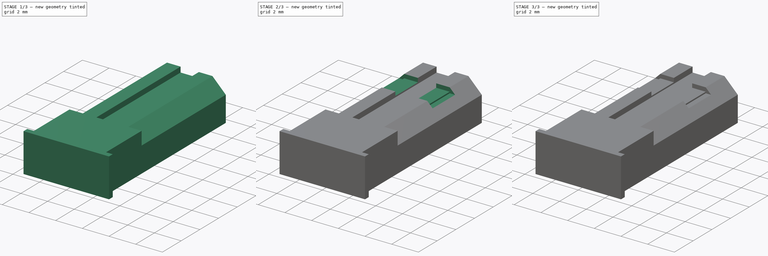
[diagram: build sequence overview — one tinted view per stage of 3, left to right]
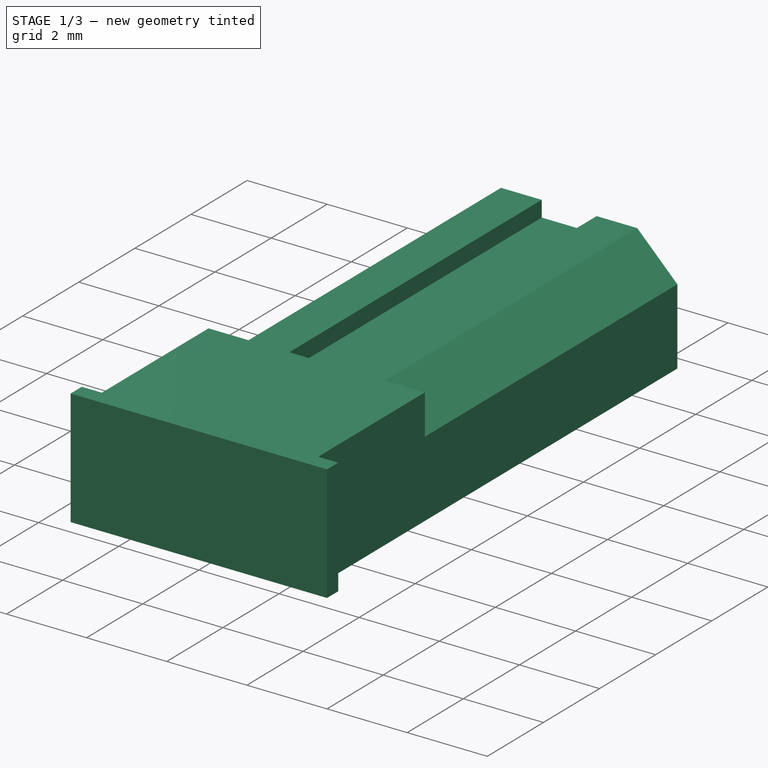
[diagram: stage 1 of 3 — iso view after this stage's code; geometry added in this stage tinted green]
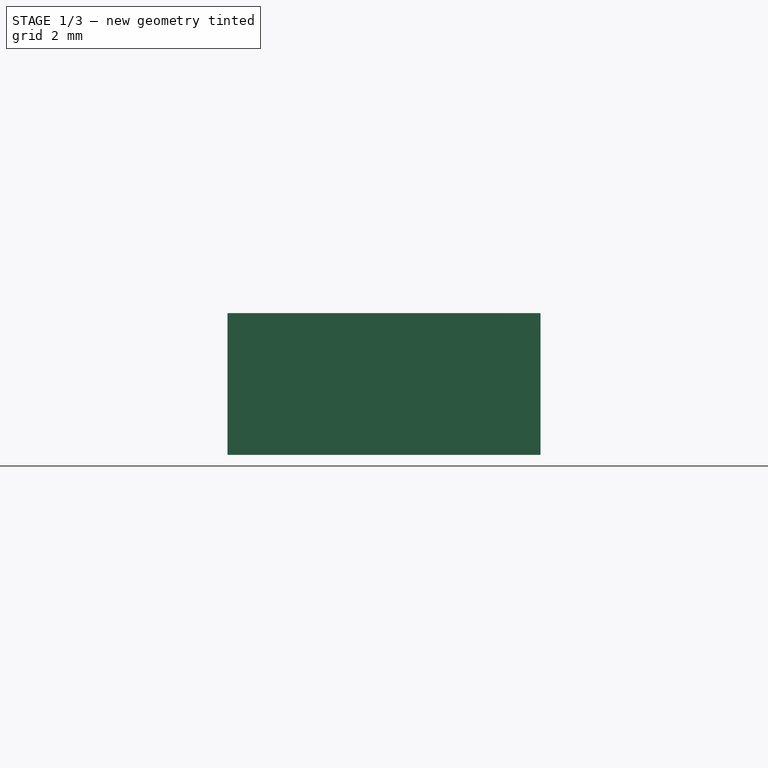
[diagram: stage 1 of 3 — front view after this stage's code; geometry added in this stage tinted green]
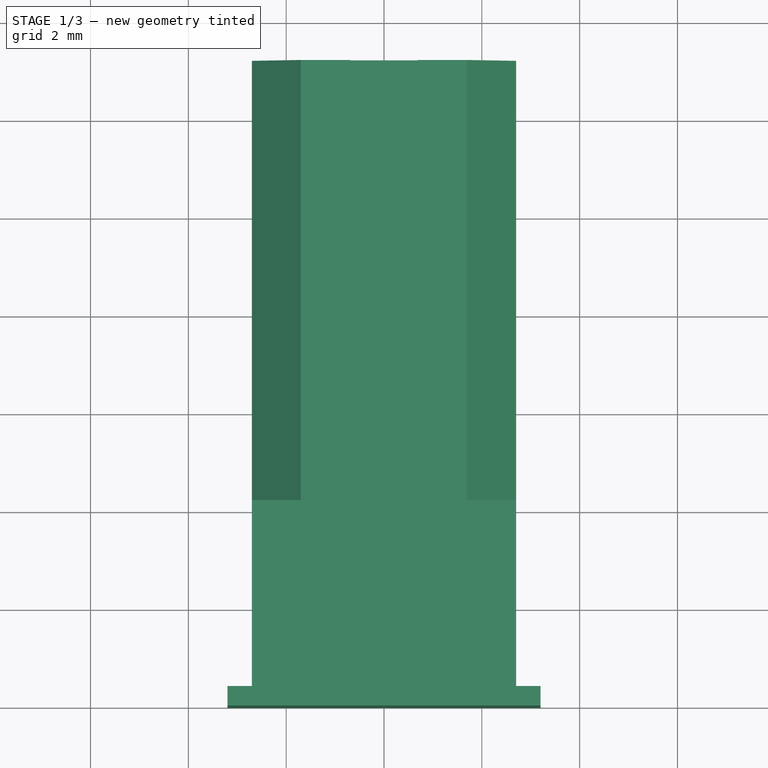
[diagram: stage 1 of 3 — top view after this stage's code; geometry added in this stage tinted green]
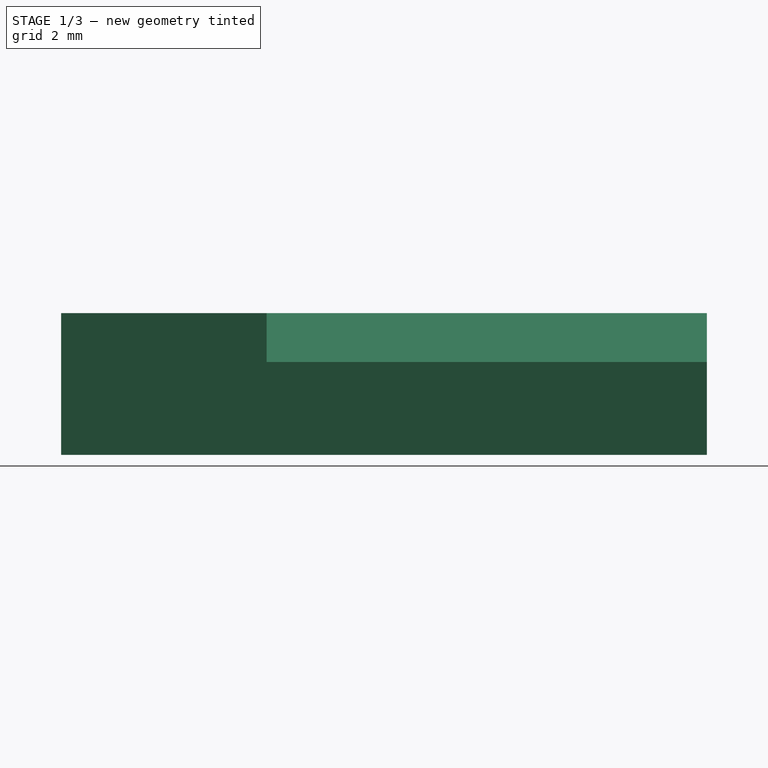
[diagram: stage 1 of 3 — right view after this stage's code; geometry added in this stage tinted green]
FCSTD DOCUMENT  (FreeCAD 0.14R3702 (Git))
Label: hotend-thermistor-connector
License: CC-BY 3.0
LicenseURL: http://creativecommons.org/licenses/by/3.0/
objects: Sketcher::SketchObject×5, PartDesign::Pocket×3, PartDesign::Pad×2, Part::Chamfer×1, Part::Feature×1
note: 17 computed .brp shape members not serialized (recipe doc carries the construction recipe); baked Part::Feature solids carry a one-line shape summary decoded from their .brp

FEATURE [Sketcher::SketchObject] Sketch  label="main-body-sketch"
  sketch-geometry (8):
    g0: LineSegment StartX=3.2 StartY=0 StartZ=0 EndX=-3.2 EndY=0 EndZ=0
    g1: LineSegment StartX=-3.2 StartY=0 StartZ=0 EndX=-3.2 EndY=0.4 EndZ=0
    g2: LineSegment StartX=-3.2 StartY=0.4 StartZ=0 EndX=-2.7 EndY=0.4 EndZ=0
    g3: LineSegment StartX=-2.7 StartY=0.4 StartZ=0 EndX=-2.7 EndY=13.2 EndZ=0
    g4: LineSegment StartX=-2.7 StartY=13.2 StartZ=0 EndX=2.7 EndY=13.2 EndZ=0
    g5: LineSegment StartX=2.7 StartY=13.2 StartZ=0 EndX=2.7 EndY=0.4 EndZ=0
    g6: LineSegment StartX=2.7 StartY=0.4 StartZ=0 EndX=3.2 EndY=0.4 EndZ=0
    g7: LineSegment StartX=3.2 StartY=0.4 StartZ=0 EndX=3.2 EndY=0 EndZ=0
  constraints (23):
    c: Horizontal(g0)
    c: Coincident(g0,g1)
    c: Vertical(g1)
    c: Coincident(g1,g2)
    c: Horizontal(g2)
    c: Coincident(g2,g3)
    c: Vertical(g3)
    c: Coincident(g3,g4)
    c: Horizontal(g4)
    c: Coincident(g4,g5)
    c: Vertical(g5)
    c: Coincident(g5,g6)
    c: Coincident(g6,g7)
    c: Coincident(g7,g0)
    c: Vertical(g7)
    c: PointOnObject(g0,g-1)
    c: Symmetric(g0,g0,g-2)
    c: Horizontal(g6)
    c: Symmetric(g2,g5,g-2)
    c: DistanceX(g0) = -6.4
    c: DistanceY(g1) = 0.4
    c: DistanceY(g4) = 13.2
    c: DistanceX(g2) = 0.5
FEATURE [PartDesign::Pad] Pad  label="main-body"
  Length = 2.9
  Length2 = 100
  Midplane = true
  Sketch = -> Sketch
  Type = 0
FEATURE [Sketcher::SketchObject] Sketch001  label="cutout-1-sketch"
  ExternalGeometry = -> [Pad]
  Placement = pos=(0,13.2,0) rot=(0,0.707107,0.707107;3.14159rad)
  Support = -> Pad [Face5]
  sketch-geometry (11):
    g0: LineSegment StartX=-2.7 StartY=0.45 StartZ=0 EndX=-1.7 EndY=1.45 EndZ=0
    g1: LineSegment StartX=-1.7 StartY=1.45 StartZ=0 EndX=-0.685 EndY=1.45 EndZ=0
    g2: LineSegment StartX=-0.685 StartY=1.45 StartZ=0 EndX=-0.685 EndY=1.05 EndZ=0
    g3: LineSegment StartX=-0.685 StartY=1.05 StartZ=0 EndX=0.685 EndY=1.05 EndZ=0
    g4: LineSegment StartX=0.685 StartY=1.05 StartZ=0 EndX=0.685 EndY=1.45 EndZ=0
    g5: LineSegment StartX=0.685 StartY=1.45 StartZ=0 EndX=1.7 EndY=1.45 EndZ=0
    g6: LineSegment StartX=1.7 StartY=1.45 StartZ=0 EndX=2.7 EndY=0.45 EndZ=0
    g7: LineSegment StartX=2.7 StartY=0.45 StartZ=0 EndX=2.7 EndY=1.95 EndZ=0
    g8: LineSegment StartX=2.7 StartY=1.95 StartZ=0 EndX=-2.7 EndY=1.95 EndZ=0
    g9: LineSegment StartX=-2.7 StartY=1.95 StartZ=0 EndX=-2.7 EndY=0.45 EndZ=0
    g10: LineSegment [constr] StartX=-2.7 StartY=0.45 StartZ=0 EndX=-1.7 EndY=0.45 EndZ=0
  constraints (31):
    c: Coincident(g0,g1)
    c: Horizontal(g1)
    c: Coincident(g1,g2)
    c: Vertical(g2)
    c: Coincident(g2,g3)
    c: Horizontal(g3)
    c: Coincident(g3,g4)
    c: Vertical(g4)
    c: Coincident(g4,g5)
    c: Horizontal(g5)
    c: Coincident(g5,g6)
    c: Coincident(g6,g7)
    c: Vertical(g7)
    c: Coincident(g7,g8)
    c: Horizontal(g8)
    c: Coincident(g8,g9)
    c: Coincident(g9,g0)
    c: Vertical(g9)
    c: PointOnObject(g0,g-3)
    c: Symmetric(g0,g6,g-2)
    c: PointOnObject(g0,g-5)
    c: Symmetric(g0,g5,g-2)
    c: Horizontal(g10)
    c: Coincident(g10,g0)
    c: DistanceX(g10) = 1
    c: Angle(g10,g0) = 0.785398
    c: DistanceY(g-5,g8) = 0.5
    c: Symmetric(g3,g2,g-2)
    c: DistanceX(g3) = 1.37
    c: DistanceY(g2) = -0.4
    c: DistanceX(g0,g-5) = -1
FEATURE [PartDesign::Pocket] Pocket  label="cutout-1"
  Length = 9
  Sketch = -> Sketch001
  Type = 0
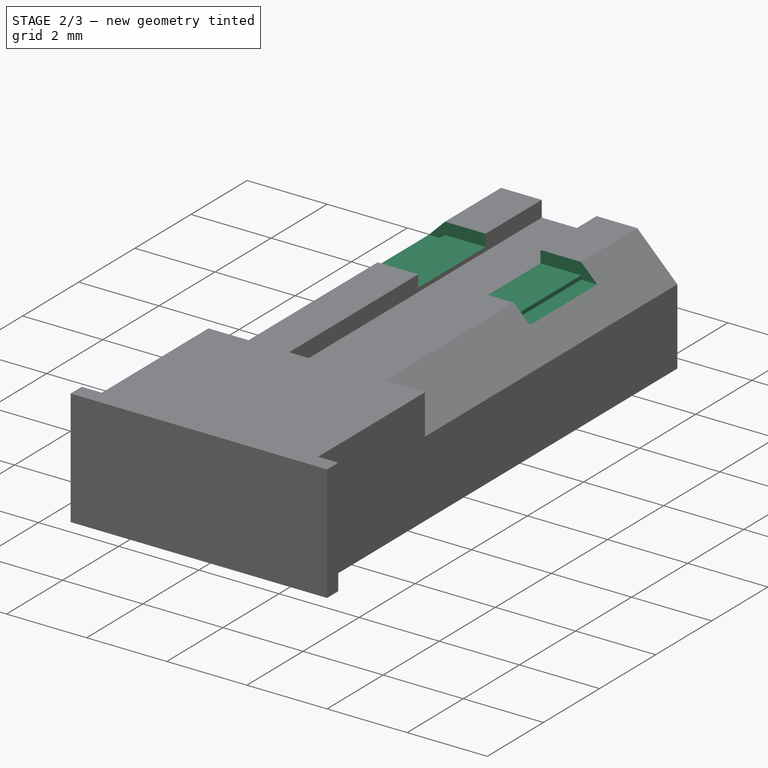
[diagram: stage 2 of 3 — iso view after this stage's code; geometry added in this stage tinted green]
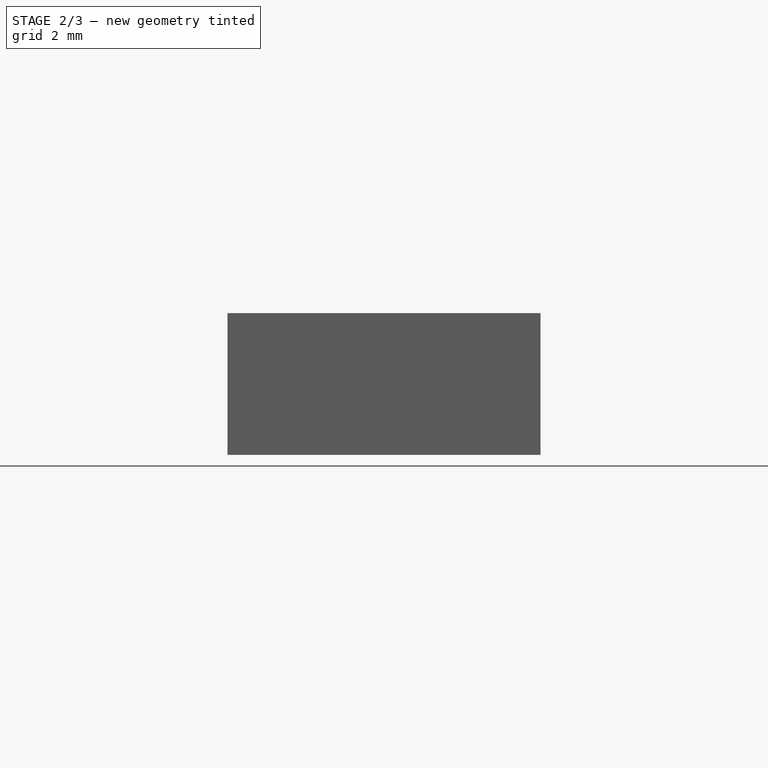
[diagram: stage 2 of 3 — front view after this stage's code; geometry added in this stage tinted green]
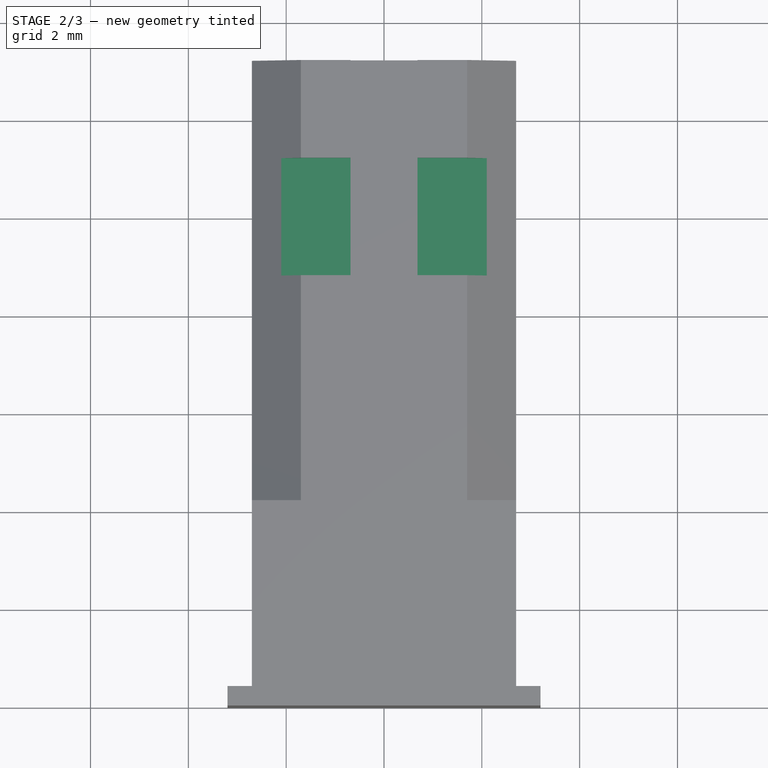
[diagram: stage 2 of 3 — top view after this stage's code; geometry added in this stage tinted green]
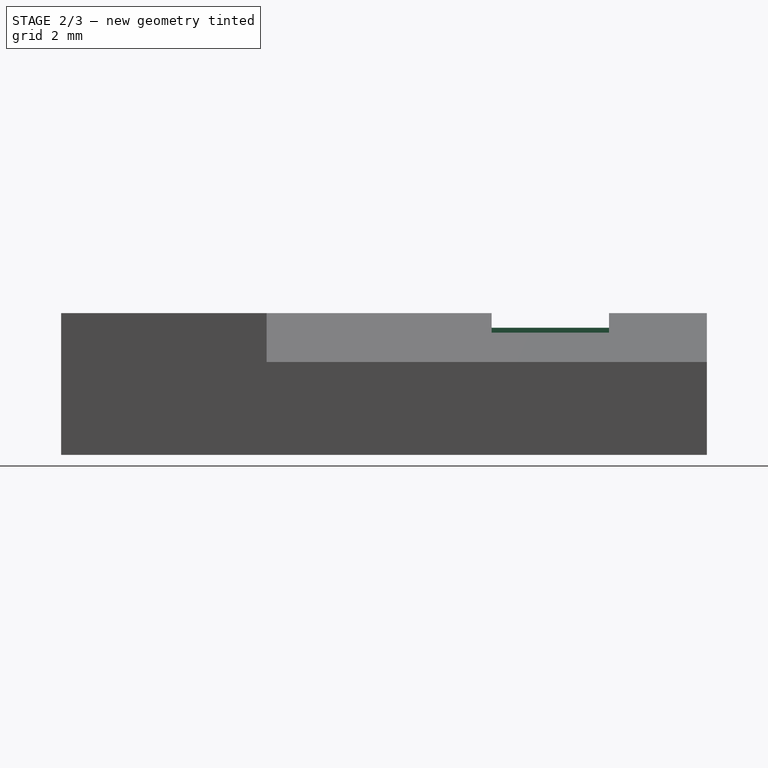
[diagram: stage 2 of 3 — right view after this stage's code; geometry added in this stage tinted green]
FEATURE [Sketcher::SketchObject] Sketch002  label="cutout-2-sketch"
  ExternalGeometry = -> [Pocket]
  Placement = pos=(0,0,1.45) rot=(0,0,1;0rad)
  Support = -> Pocket [Face18]
  sketch-geometry (4):
    g0: LineSegment StartX=-2.7 StartY=11.2 StartZ=0 EndX=2.7 EndY=11.2 EndZ=0
    g1: LineSegment StartX=2.7 StartY=11.2 StartZ=0 EndX=2.7 EndY=8.8 EndZ=0
    g2: LineSegment StartX=2.7 StartY=8.8 StartZ=0 EndX=-2.7 EndY=8.8 EndZ=0
    g3: LineSegment StartX=-2.7 StartY=8.8 StartZ=0 EndX=-2.7 EndY=11.2 EndZ=0
  constraints (12):
    c: Coincident(g0,g1)
    c: Coincident(g1,g2)
    c: Coincident(g2,g3)
    c: Coincident(g3,g0)
    c: Horizontal(g0)
    c: Horizontal(g2)
    c: Vertical(g1)
    c: Vertical(g3)
    c: PointOnObject(g0,g-3)
    c: Symmetric(g0,g0,g-2)
    c: DistanceY(g0,g-4) = 2
    c: DistanceY(g1) = -2.4
FEATURE [PartDesign::Pocket] Pocket001  label="cutout-2"
  Length = 0.4
  Sketch = -> Sketch002
  Type = 0
FEATURE [Sketcher::SketchObject] Sketch003  label="metal-contacts-sketch"
  ExternalGeometry = -> [Pocket001]
  Placement = pos=(0,0,1.05) rot=(0,0,1;0rad)
  Support = -> Pocket001 [Face26]
  sketch-geometry (8):
    g0: LineSegment StartX=-1.7 StartY=11.2 StartZ=0 EndX=-0.685 EndY=11.2 EndZ=0
    g1: LineSegment StartX=-0.685 StartY=11.2 StartZ=0 EndX=-0.685 EndY=8.8 EndZ=0
    g2: LineSegment StartX=-0.685 StartY=8.8 StartZ=0 EndX=-1.7 EndY=8.8 EndZ=0
    g3: LineSegment StartX=-1.7 StartY=8.8 StartZ=0 EndX=-1.7 EndY=11.2 EndZ=0
    g4: LineSegment StartX=0.685 StartY=11.2 StartZ=0 EndX=1.7 EndY=11.2 EndZ=0
    g5: LineSegment StartX=1.7 StartY=11.2 StartZ=0 EndX=1.7 EndY=8.8 EndZ=0
    g6: LineSegment StartX=1.7 StartY=8.8 StartZ=0 EndX=0.685 EndY=8.8 EndZ=0
    g7: LineSegment StartX=0.685 StartY=8.8 StartZ=0 EndX=0.685 EndY=11.2 EndZ=0
  constraints (21):
    c: Coincident(g0,g1)
    c: Coincident(g1,g2)
    c: Coincident(g2,g3)
    c: Coincident(g3,g0)
    c: Horizontal(g2)
    c: Vertical(g1)
    c: Vertical(g3)
    c: Coincident(g4,g5)
    c: Coincident(g5,g6)
    c: Coincident(g6,g7)
    c: Coincident(g7,g4)
    c: Horizontal(g4)
    c: Horizontal(g6)
    c: Vertical(g5)
    c: Vertical(g7)
    c: Symmetric(g0,g4,g-2)
    c: Symmetric(g0,g4,g-2)
    c: Coincident(g0,g-3)
    c: Coincident(g0,g-3)
    c: Coincident(g2,g-4)
    c: Symmetric(g6,g1,g-2)
FEATURE [PartDesign::Pad] Pad001  label="metal-contacts"
  Length = 0.1
  Length2 = 100
  Sketch = -> Sketch003
  Type = 0
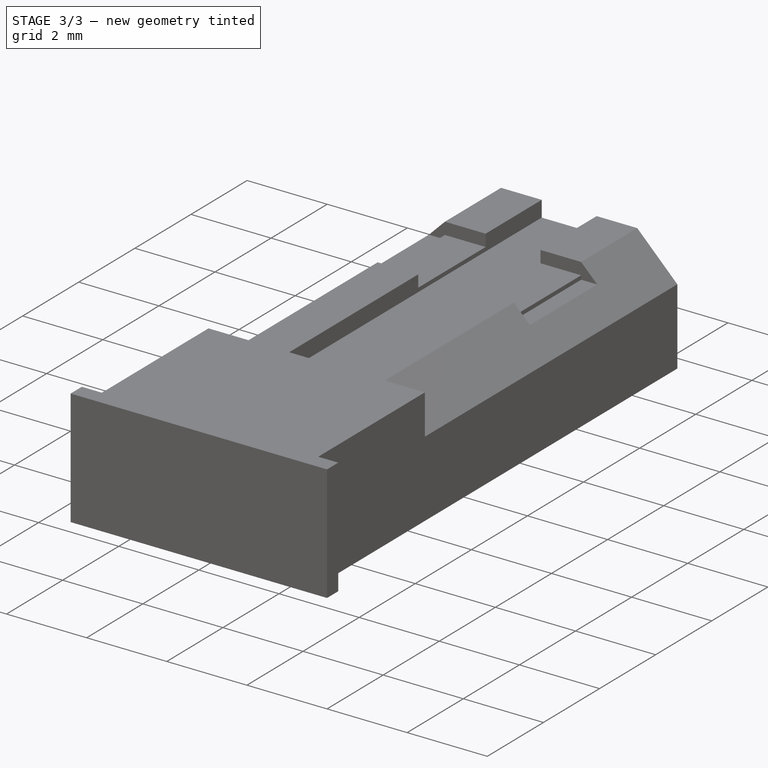
[diagram: stage 3 of 3 — iso view after this stage's code; geometry added in this stage tinted green]
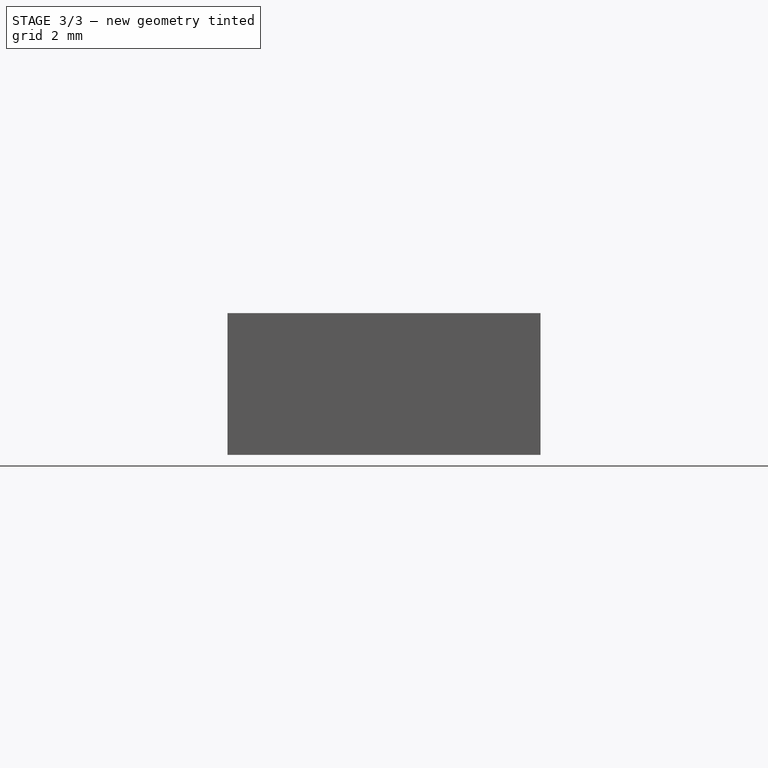
[diagram: stage 3 of 3 — front view after this stage's code; geometry added in this stage tinted green]
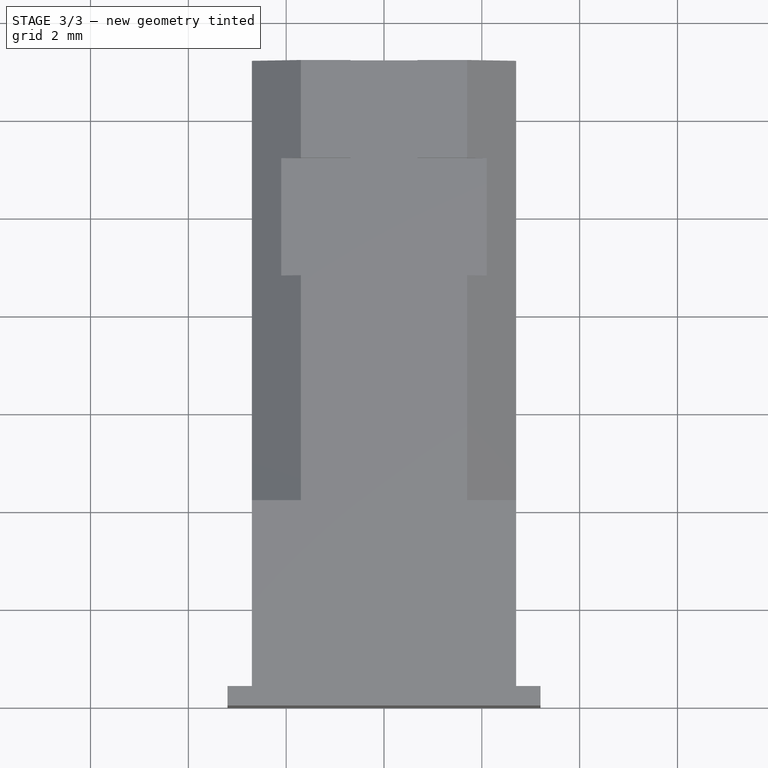
[diagram: stage 3 of 3 — top view after this stage's code; geometry added in this stage tinted green]
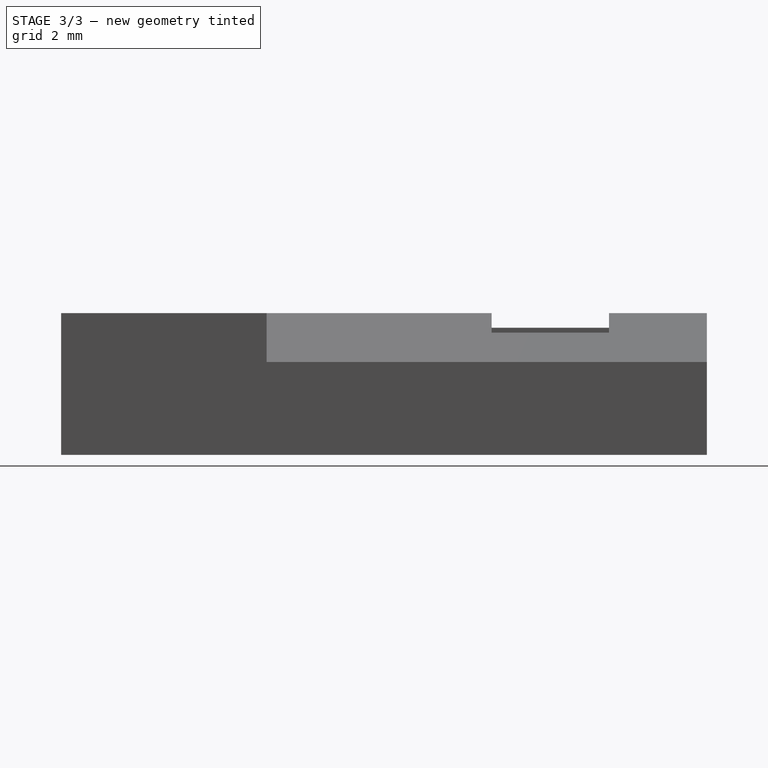
[diagram: stage 3 of 3 — right view after this stage's code; geometry added in this stage tinted green]
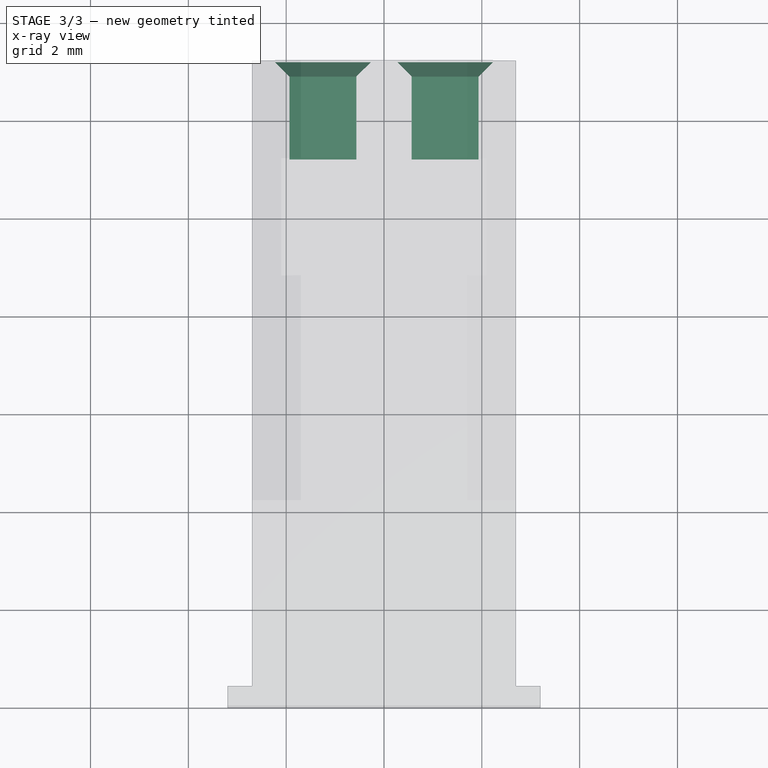
[diagram: stage 3 of 3 — x-ray composite at the top view; earlier geometry ghosted, this stage's added geometry solid]
FEATURE [Sketcher::SketchObject] Sketch004  label="pin-holes-sketch"
  Placement = pos=(0,13.2,0) rot=(0,0.707107,0.707107;3.14159rad)
  Support = -> Pad001 [Face9]
  sketch-geometry (8):
    g0: LineSegment StartX=-1.935 StartY=0.05 StartZ=0 EndX=-0.565 EndY=0.05 EndZ=0
    g1: LineSegment StartX=-0.565 StartY=0.05 StartZ=0 EndX=-0.565 EndY=-0.85 EndZ=0
    g2: LineSegment StartX=-0.565 StartY=-0.85 StartZ=0 EndX=-1.935 EndY=-0.85 EndZ=0
    g3: LineSegment StartX=-1.935 StartY=-0.85 StartZ=0 EndX=-1.935 EndY=0.05 EndZ=0
    g4: LineSegment StartX=0.565 StartY=0.05 StartZ=0 EndX=1.935 EndY=0.05 EndZ=0
    g5: LineSegment StartX=1.935 StartY=0.05 StartZ=0 EndX=1.935 EndY=-0.85 EndZ=0
    g6: LineSegment StartX=1.935 StartY=-0.85 StartZ=0 EndX=0.565 EndY=-0.85 EndZ=0
    g7: LineSegment StartX=0.565 StartY=-0.85 StartZ=0 EndX=0.565 EndY=0.05 EndZ=0
  constraints (23):
    c: Coincident(g0,g1)
    c: Coincident(g1,g2)
    c: Coincident(g2,g3)
    c: Coincident(g3,g0)
    c: Horizontal(g0)
    c: Horizontal(g2)
    c: Vertical(g1)
    c: Vertical(g3)
    c: Coincident(g4,g5)
    c: Coincident(g5,g6)
    c: Coincident(g6,g7)
    c: Coincident(g7,g4)
    c: Horizontal(g4)
    c: Horizontal(g6)
    c: Vertical(g5)
    c: Vertical(g7)
    c: DistanceY(g1) = -0.9
    c: DistanceX(g0) = 1.37
    c: DistanceX(g0,g4) = 1.13
    c: Symmetric(g4,g0,g-2)
    c: DistanceY(g-1,g0) = 0.05
    c: Symmetric(g4,g0,g-2)
    c: PointOnObject(g6,g2)
FEATURE [PartDesign::Pocket] Pocket002  label="pin-holes"
  Length = 2
  Sketch = -> Sketch004
  Type = 0
FEATURE [Part::Chamfer] Chamfer
  Base = -> Pocket002
  Edges = 8 edges r=0.3: [Edge42,Edge43,Edge44,Edge45,Edge46,Edge47,Edge48,Edge49]
FEATURE [Part::Feature] Chamfer001  label="hotend-thermistor-connector-final"
  shape: bbox 6.4 x 13.2 x 2.9 mm, 48 faces (baked)
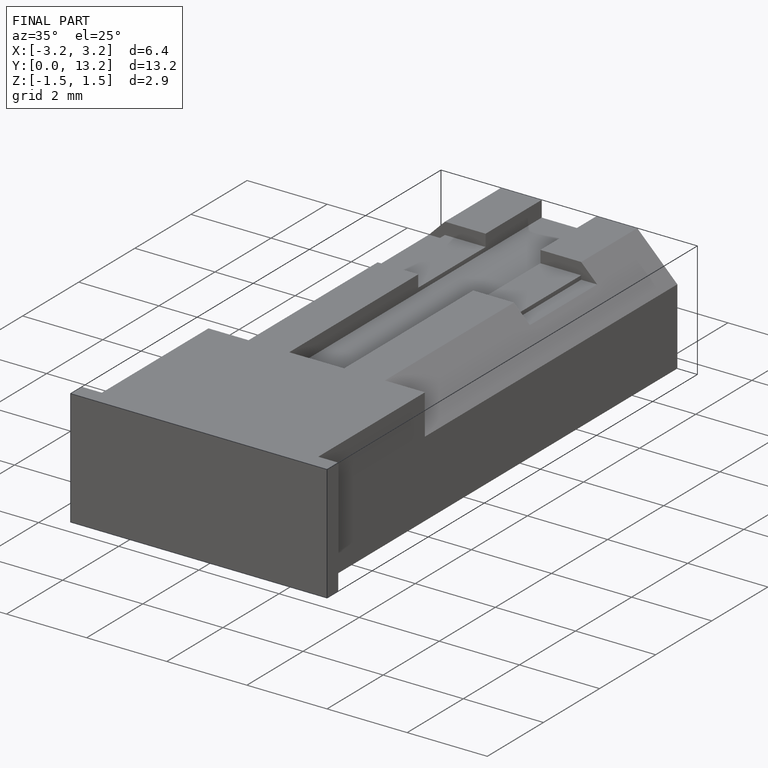
[diagram: finished part — iso view with bounding-box wireframe]
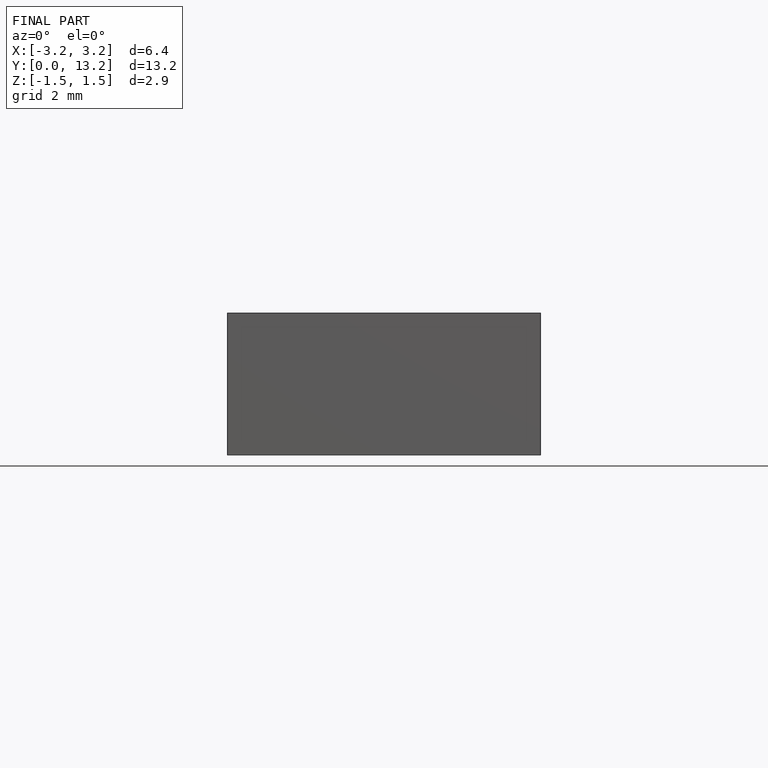
[diagram: finished part — front view with bounding-box wireframe]
